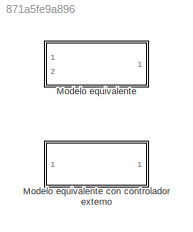
MODEL slx_871a5fe9a896
KIND model
CONFIG AbsTol = auto
CONFIG EnableMultiTasking = off
CONFIG FixedStep = auto
CONFIG MaxStep = auto
CONFIG MinStep = auto
CONFIG RelTol = 1e-3
CONFIG SampleTimeConstraint = Unconstrained
CONFIG Solver = VariableStepAuto
CONFIG SolverName = VariableStepAuto
CONFIG StartTime = 0.0
CONFIG StopTime = 10.0
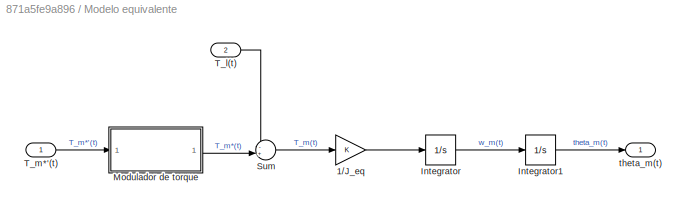
BLOCK [SubSystem] Modelo equivalente
  Ports = [2, 1]
  RequestExecContextInheritance = off
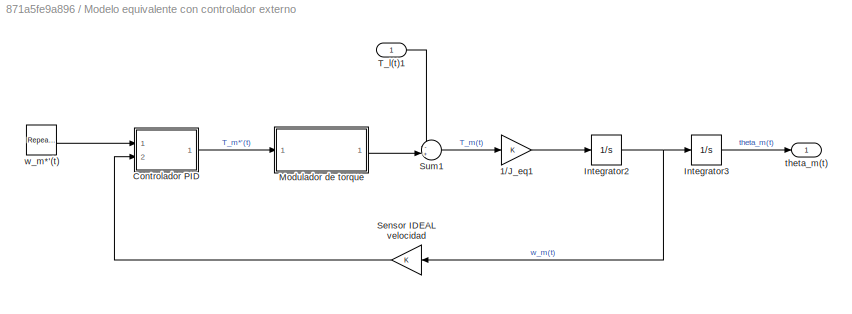
BLOCK [SubSystem] Modelo equivalente con controlador externo
  Ports = [1, 1]
  RequestExecContextInheritance = off
BLOCK [Gain] Modelo equivalente con controlador externo/1//J_eq1
  OutDataTypeStr = Inherit: Inherit via internal rule
  ParamDataTypeStr = Inherit: Inherit via internal rule
  SaturateOnIntegerOverflow = off
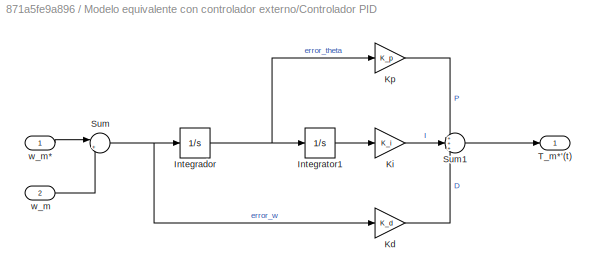
BLOCK [SubSystem] Modelo equivalente con controlador externo/Controlador PID
  Ports = [2, 1]
  RequestExecContextInheritance = off
BLOCK [Integrator] Modelo equivalente con controlador externo/Controlador PID/Integrador
  Ports = [1, 1]
BLOCK [Integrator] Modelo equivalente con controlador externo/Controlador PID/Integrator1
  Ports = [1, 1]
BLOCK [Gain] Modelo equivalente con controlador externo/Controlador PID/Kd
  Gain = K_d
  OutDataTypeStr = Inherit: Inherit via internal rule
  ParamDataTypeStr = Inherit: Inherit via internal rule
  SaturateOnIntegerOverflow = off
BLOCK [Gain] Modelo equivalente con controlador externo/Controlador PID/Ki
  Gain = K_i
  OutDataTypeStr = Inherit: Inherit via internal rule
  ParamDataTypeStr = Inherit: Inherit via internal rule
  SaturateOnIntegerOverflow = off
BLOCK [Gain] Modelo equivalente con controlador externo/Controlador PID/Kp
  Gain = K_p
  OutDataTypeStr = Inherit: Inherit via internal rule
  ParamDataTypeStr = Inherit: Inherit via internal rule
  SaturateOnIntegerOverflow = off
BLOCK [Sum] Modelo equivalente con controlador externo/Controlador PID/Sum
  IconShape = round
  InputSameDT = off
  Inputs = |+-
  OutDataTypeStr = Inherit: Inherit via internal rule
  Ports = [2, 1]
  SaturateOnIntegerOverflow = off
BLOCK [Sum] Modelo equivalente con controlador externo/Controlador PID/Sum1
  IconShape = round
  InputSameDT = off
  Inputs = +++
  OutDataTypeStr = Inherit: Inherit via internal rule
  Ports = [3, 1]
  SaturateOnIntegerOverflow = off
BLOCK [Outport] Modelo equivalente con controlador externo/Controlador PID/T_m*'(t)
  IconDisplay = Port number
BLOCK [Inport] Modelo equivalente con controlador externo/Controlador PID/w_m
  IconDisplay = Port number
  Port = 2
BLOCK [Inport] Modelo equivalente con controlador externo/Controlador PID/w_m*
  IconDisplay = Port number
BLOCK [Integrator] Modelo equivalente con controlador externo/Integrator2
  Ports = [1, 1]
BLOCK [Integrator] Modelo equivalente con controlador externo/Integrator3
  Ports = [1, 1]
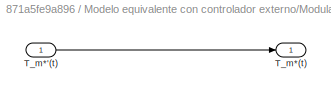
BLOCK [SubSystem] Modelo equivalente con controlador externo/Modulador de torque
  Ports = [1, 1]
  RequestExecContextInheritance = off
BLOCK [Inport] Modelo equivalente con controlador externo/Modulador de torque/T_m*'(t)
  IconDisplay = Port number
BLOCK [Outport] Modelo equivalente con controlador externo/Modulador de torque/T_m*(t)
  IconDisplay = Port number
BLOCK [Gain] Modelo equivalente con controlador externo/Sensor IDEAL velocidad
  OutDataTypeStr = Inherit: Inherit via internal rule
  ParamDataTypeStr = Inherit: Inherit via internal rule
  SaturateOnIntegerOverflow = off
BLOCK [Sum] Modelo equivalente con controlador externo/Sum1
  IconShape = round
  InputSameDT = off
  Inputs = -+|
  OutDataTypeStr = Inherit: Inherit via internal rule
  Ports = [2, 1]
  SaturateOnIntegerOverflow = off
BLOCK [Inport] Modelo equivalente con controlador externo/T_l(t)1
  IconDisplay = Port number
BLOCK [Outport] Modelo equivalente con controlador externo/theta_m(t)
  IconDisplay = Port number
BLOCK [Reference] Modelo equivalente con controlador externo/w_m*'(t)  REF=simulink/Sources/Repeating
Sequence
  Ports = [0, 1]
  SourceBlock = simulink/Sources/Repeating\nSequence
  SourceProductBaseCode = SL
  SourceProductName = Simulink
  SourceType = Repeating table
BLOCK [Gain] Modelo equivalente/1//J_eq
  OutDataTypeStr = Inherit: Inherit via internal rule
  ParamDataTypeStr = Inherit: Inherit via internal rule
  SaturateOnIntegerOverflow = off
BLOCK [Integrator] Modelo equivalente/Integrator
  Ports = [1, 1]
BLOCK [Integrator] Modelo equivalente/Integrator1
  Ports = [1, 1]
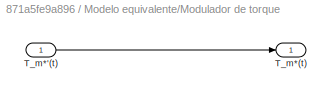
BLOCK [SubSystem] Modelo equivalente/Modulador de torque
  Ports = [1, 1]
  RequestExecContextInheritance = off
BLOCK [Inport] Modelo equivalente/Modulador de torque/T_m*'(t)
  IconDisplay = Port number
BLOCK [Outport] Modelo equivalente/Modulador de torque/T_m*(t)
  IconDisplay = Port number
BLOCK [Sum] Modelo equivalente/Sum
  IconShape = round
  InputSameDT = off
  Inputs = -+|
  OutDataTypeStr = Inherit: Inherit via internal rule
  Ports = [2, 1]
  SaturateOnIntegerOverflow = off
BLOCK [Inport] Modelo equivalente/T_l(t)
  IconDisplay = Port number
  Port = 2
BLOCK [Inport] Modelo equivalente/T_m*'(t)
  IconDisplay = Port number
BLOCK [Outport] Modelo equivalente/theta_m(t)
  IconDisplay = Port number
LINE Modelo equivalente con controlador externo/1//J_eq1:1 -> Modelo equivalente con controlador externo/Integrator2:1
NET Modelo equivalente con controlador externo/Controlador PID/Integrador:1 -> Modelo equivalente con controlador externo/Controlador PID/Integrator1:1, Modelo equivalente con controlador externo/Controlador PID/Kp:1
LINE Modelo equivalente con controlador externo/Controlador PID/Integrator1:1 -> Modelo equivalente con controlador externo/Controlador PID/Ki:1
LINE Modelo equivalente con controlador externo/Controlador PID/Kd:1 -> Modelo equivalente con controlador externo/Controlador PID/Sum1:3
LINE Modelo equivalente con controlador externo/Controlador PID/Ki:1 -> Modelo equivalente con controlador externo/Controlador PID/Sum1:2
LINE Modelo equivalente con controlador externo/Controlador PID/Kp:1 -> Modelo equivalente con controlador externo/Controlador PID/Sum1:1
LINE Modelo equivalente con controlador externo/Controlador PID/Sum1:1 -> Modelo equivalente con controlador externo/Controlador PID/T_m*'(t):1
NET Modelo equivalente con controlador externo/Controlador PID/Sum:1 -> Modelo equivalente con controlador externo/Controlador PID/Integrador:1, Modelo equivalente con controlador externo/Controlador PID/Kd:1
LINE Modelo equivalente con controlador externo/Controlador PID/w_m*:1 -> Modelo equivalente con controlador externo/Controlador PID/Sum:1
LINE Modelo equivalente con controlador externo/Controlador PID/w_m:1 -> Modelo equivalente con controlador externo/Controlador PID/Sum:2
LINE Modelo equivalente con controlador externo/Controlador PID:1 -> Modelo equivalente con controlador externo/Modulador de torque:1
NET Modelo equivalente con controlador externo/Integrator2:1 -> Modelo equivalente con controlador externo/Integrator3:1, Modelo equivalente con controlador externo/Sensor IDEAL velocidad:1
LINE Modelo equivalente con controlador externo/Integrator3:1 -> Modelo equivalente con controlador externo/theta_m(t):1
LINE Modelo equivalente con controlador externo/Modulador de torque/T_m*'(t):1 -> Modelo equivalente con controlador externo/Modulador de torque/T_m*(t):1
LINE Modelo equivalente con controlador externo/Modulador de torque:1 -> Modelo equivalente con controlador externo/Sum1:2
LINE Modelo equivalente con controlador externo/Sensor IDEAL velocidad:1 -> Modelo equivalente con controlador externo/Controlador PID:2
LINE Modelo equivalente con controlador externo/Sum1:1 -> Modelo equivalente con controlador externo/1//J_eq1:1
LINE Modelo equivalente con controlador externo/T_l(t)1:1 -> Modelo equivalente con controlador externo/Sum1:1
LINE Modelo equivalente con controlador externo/w_m*'(t):1 -> Modelo equivalente con controlador externo/Controlador PID:1
LINE Modelo equivalente/1//J_eq:1 -> Modelo equivalente/Integrator:1
LINE Modelo equivalente/Integrator1:1 -> Modelo equivalente/theta_m(t):1
LINE Modelo equivalente/Integrator:1 -> Modelo equivalente/Integrator1:1
LINE Modelo equivalente/Modulador de torque/T_m*'(t):1 -> Modelo equivalente/Modulador de torque/T_m*(t):1
LINE Modelo equivalente/Modulador de torque:1 -> Modelo equivalente/Sum:2
LINE Modelo equivalente/Sum:1 -> Modelo equivalente/1//J_eq:1
LINE Modelo equivalente/T_l(t):1 -> Modelo equivalente/Sum:1
LINE Modelo equivalente/T_m*'(t):1 -> Modelo equivalente/Modulador de torque:1
note: NET lines group one-source signal fan-out (src -> all destinations, sorted); 1:1 wires keep LINE
